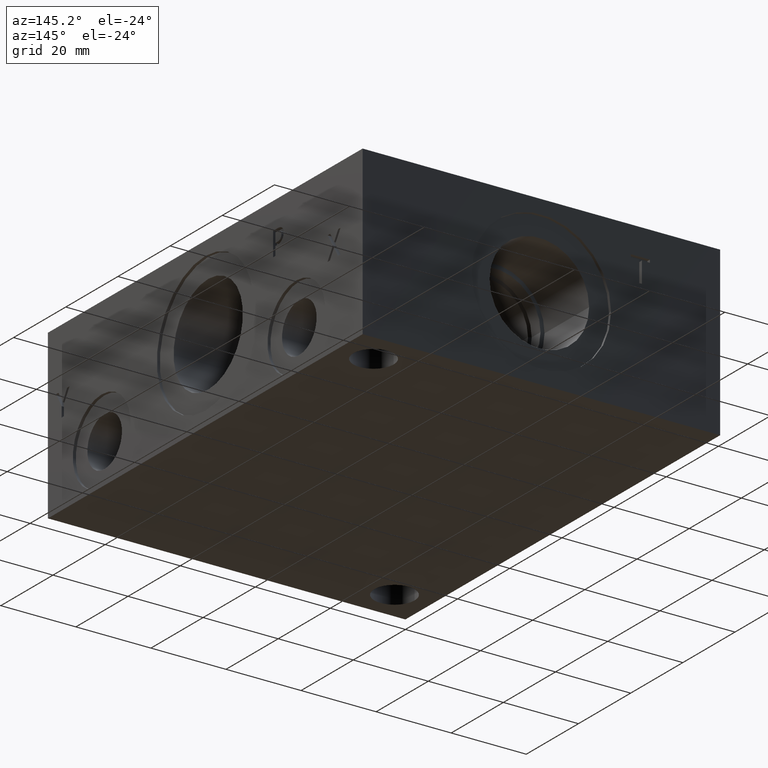
[diagram: clean part render]
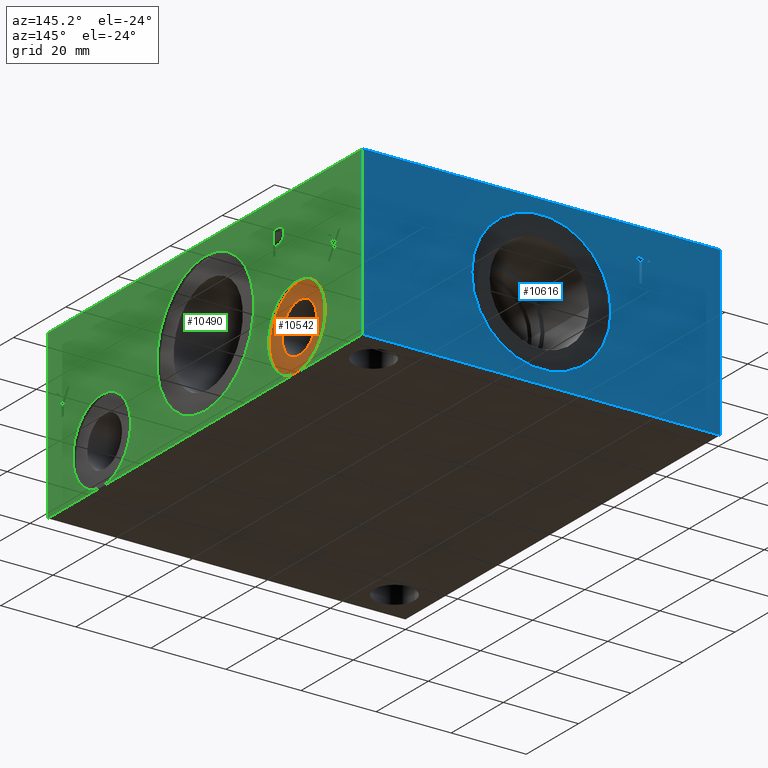
[diagram: same view with three faces highlighted in distinct colors, each labeled with its STEP entity id]
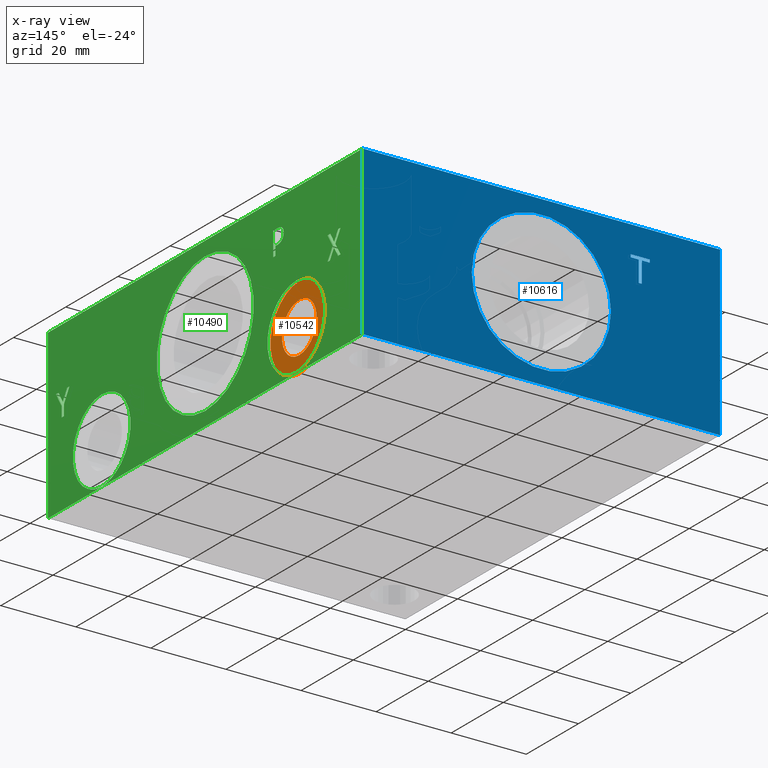
[diagram: x-ray of the same camera — body ghosted, the three highlighted faces saturated]
A machine part, auxiliary view with three faces highlighted in distinct colors.
The next image is the same camera in x-ray (body ghosted, the three faces saturated) — at least one of them is partly hidden behind the body in this view.
Their STEP definitions:

[orange] entity #10542 — the highlighted planar face has unit normal (-1, 0, 0).
#107=CIRCLE('',#10991,11.0617);
#108=CIRCLE('',#10992,11.0617);
#109=CIRCLE('',#10994,6.6294);
#110=CIRCLE('',#10995,6.6294);
#285=FACE_BOUND('',#1743,.T.);
#1161=FACE_OUTER_BOUND('',#1742,.T.);
#1742=EDGE_LOOP('',(#8887,#8888));
#1743=EDGE_LOOP('',(#8889,#8890));
#4785=VERTEX_POINT('',#17635);
#4786=VERTEX_POINT('',#17637);
#4787=VERTEX_POINT('',#17641);
#4788=VERTEX_POINT('',#17642);
#6199=EDGE_CURVE('',#4785,#4786,#107,.T.);
#6200=EDGE_CURVE('',#4786,#4785,#108,.T.);
#6201=EDGE_CURVE('',#4787,#4788,#109,.T.);
#6202=EDGE_CURVE('',#4788,#4787,#110,.T.);
#8887=ORIENTED_EDGE('',*,*,#6200,.F.);
#8888=ORIENTED_EDGE('',*,*,#6199,.F.);
#8889=ORIENTED_EDGE('',*,*,#6201,.T.);
#8890=ORIENTED_EDGE('',*,*,#6202,.T.);
#9627=PLANE('',#10993);
#10542=ADVANCED_FACE('',(#1161,#285),#9627,.F.);
#10991=AXIS2_PLACEMENT_3D('',#17638,#12899,#12900);
#10992=AXIS2_PLACEMENT_3D('',#17639,#12901,#12902);
#10993=AXIS2_PLACEMENT_3D('',#17640,#12903,#12904);
#10994=AXIS2_PLACEMENT_3D('',#17643,#12905,#12906);
#10995=AXIS2_PLACEMENT_3D('',#17644,#12907,#12908);
#12899=DIRECTION('center_axis',(-1.,0.,0.));
#12900=DIRECTION('ref_axis',(0.,0.,1.));
#12901=DIRECTION('center_axis',(-1.,0.,0.));
#12902=DIRECTION('ref_axis',(0.,0.,1.));
#12903=DIRECTION('center_axis',(-1.,0.,0.));
#12904=DIRECTION('ref_axis',(0.,0.,1.));
#12905=DIRECTION('center_axis',(-1.,0.,0.));
#12906=DIRECTION('ref_axis',(0.,0.,1.));
#12907=DIRECTION('center_axis',(-1.,0.,0.));
#12908=DIRECTION('ref_axis',(0.,0.,1.));
#17635=CARTESIAN_POINT('',(94.4626,95.25,22.1615));
#17637=CARTESIAN_POINT('',(94.4626,95.25,0.0380999999999987));
#17638=CARTESIAN_POINT('Origin',(94.4626,95.25,11.0998));
#17639=CARTESIAN_POINT('Origin',(94.4626,95.25,11.0998));
#17640=CARTESIAN_POINT('Origin',(94.4626,95.25,4.4704));
#17641=CARTESIAN_POINT('',(94.4626,95.25,4.4704));
#17642=CARTESIAN_POINT('',(94.4626,95.25,17.7292));
#17643=CARTESIAN_POINT('Origin',(94.4626,95.25,11.0998));
#17644=CARTESIAN_POINT('Origin',(94.4626,95.25,11.0998));

[blue] entity #10616 — the highlighted planar face has unit normal (0, 1, 0).
#120=CIRCLE('',#11012,18.5547);
#121=CIRCLE('',#11013,18.5547);
#301=FACE_BOUND('',#1833,.T.);
#302=FACE_BOUND('',#1834,.T.);
#1235=FACE_OUTER_BOUND('',#1832,.T.);
#1832=EDGE_LOOP('',(#9246,#9247,#9248,#9249));
#1833=EDGE_LOOP('',(#9250,#9251,#9252,#9253,#9254,#9255,#9256,#9257));
#1834=EDGE_LOOP('',(#9258,#9259));
#2048=LINE('',#14902,#3088);
#2695=LINE('',#16923,#3735);
#2699=LINE('',#16931,#3739);
#2702=LINE('',#16937,#3742);
#2705=LINE('',#16943,#3745);
#2708=LINE('',#16949,#3748);
#2711=LINE('',#16955,#3751);
#2714=LINE('',#16961,#3754);
#2717=LINE('',#16966,#3757);
#2752=LINE('',#17175,#3792);
#2891=LINE('',#18046,#3931);
#2892=LINE('',#18047,#3932);
#3088=VECTOR('',#11498,10.);
#3735=VECTOR('',#12597,10.);
#3739=VECTOR('',#12603,10.);
#3742=VECTOR('',#12608,10.);
#3745=VECTOR('',#12613,10.);
#3748=VECTOR('',#12618,10.);
#3751=VECTOR('',#12623,10.);
#3754=VECTOR('',#12628,10.);
#3757=VECTOR('',#12633,10.);
#3792=VECTOR('',#12690,10.);
#3931=VECTOR('',#13371,10.);
#3932=VECTOR('',#13372,10.);
#4149=VERTEX_POINT('',#14895);
#4152=VERTEX_POINT('',#14900);
#4643=VERTEX_POINT('',#16921);
#4644=VERTEX_POINT('',#16922);
#4647=VERTEX_POINT('',#16930);
#4649=VERTEX_POINT('',#16936);
#4651=VERTEX_POINT('',#16942);
#4653=VERTEX_POINT('',#16948);
#4655=VERTEX_POINT('',#16954);
#4657=VERTEX_POINT('',#16960);
#4692=VERTEX_POINT('',#17172);
#4693=VERTEX_POINT('',#17174);
#4798=VERTEX_POINT('',#17674);
#4799=VERTEX_POINT('',#17675);
#5258=EDGE_CURVE('',#4149,#4152,#2048,.T.);
#5989=EDGE_CURVE('',#4643,#4644,#2695,.T.);
#5993=EDGE_CURVE('',#4647,#4643,#2699,.T.);
#5996=EDGE_CURVE('',#4649,#4647,#2702,.T.);
#5999=EDGE_CURVE('',#4651,#4649,#2705,.T.);
#6002=EDGE_CURVE('',#4653,#4651,#2708,.T.);
#6005=EDGE_CURVE('',#4655,#4653,#2711,.T.);
#6008=EDGE_CURVE('',#4657,#4655,#2714,.T.);
#6011=EDGE_CURVE('',#4644,#4657,#2717,.T.);
#6062=EDGE_CURVE('',#4692,#4693,#2752,.T.);
#6216=EDGE_CURVE('',#4798,#4799,#120,.T.);
#6217=EDGE_CURVE('',#4799,#4798,#121,.T.);
#6388=EDGE_CURVE('',#4692,#4149,#2891,.T.);
#6389=EDGE_CURVE('',#4693,#4152,#2892,.T.);
#9246=ORIENTED_EDGE('',*,*,#6388,.T.);
#9247=ORIENTED_EDGE('',*,*,#5258,.T.);
#9248=ORIENTED_EDGE('',*,*,#6389,.F.);
#9249=ORIENTED_EDGE('',*,*,#6062,.F.);
#9250=ORIENTED_EDGE('',*,*,#5989,.T.);
#9251=ORIENTED_EDGE('',*,*,#6011,.T.);
#9252=ORIENTED_EDGE('',*,*,#6008,.T.);
#9253=ORIENTED_EDGE('',*,*,#6005,.T.);
#9254=ORIENTED_EDGE('',*,*,#6002,.T.);
#9255=ORIENTED_EDGE('',*,*,#5999,.T.);
#9256=ORIENTED_EDGE('',*,*,#5996,.T.);
#9257=ORIENTED_EDGE('',*,*,#5993,.T.);
#9258=ORIENTED_EDGE('',*,*,#6216,.T.);
#9259=ORIENTED_EDGE('',*,*,#6217,.T.);
#9645=PLANE('',#11198);
#10616=ADVANCED_FACE('',(#1235,#301,#302),#9645,.T.);
#11012=AXIS2_PLACEMENT_3D('',#17676,#12945,#12946);
#11013=AXIS2_PLACEMENT_3D('',#17677,#12947,#12948);
#11198=AXIS2_PLACEMENT_3D('',#18045,#13369,#13370);
#11498=DIRECTION('',(0.,0.,1.));
#12597=DIRECTION('',(1.,0.,5.26220561921649E-15));
#12603=DIRECTION('',(3.17280044688052E-15,0.,-1.));
#12608=DIRECTION('',(1.,0.,4.16909044227778E-15));
#12613=DIRECTION('',(0.,0.,-1.));
#12618=DIRECTION('',(-1.,0.,-2.60988423856301E-15));
#12623=DIRECTION('',(0.,0.,1.));
#12628=DIRECTION('',(1.,0.,4.16909044227778E-15));
#12633=DIRECTION('',(-3.17280044688052E-15,0.,1.));
#12690=DIRECTION('',(0.,0.,1.));
#12945=DIRECTION('center_axis',(0.,-1.,0.));
#12946=DIRECTION('ref_axis',(1.,0.,0.));
#12947=DIRECTION('center_axis',(0.,-1.,0.));
#12948=DIRECTION('ref_axis',(1.,0.,0.));
#13369=DIRECTION('center_axis',(0.,1.,0.));
#13370=DIRECTION('ref_axis',(-1.,0.,0.));
#13371=DIRECTION('',(-1.,0.,0.));
#13372=DIRECTION('',(-1.,0.,0.));
#14895=CARTESIAN_POINT('',(0.,120.65,0.));
#14900=CARTESIAN_POINT('',(0.,120.65,44.45));
#14902=CARTESIAN_POINT('',(0.,120.65,0.));
#16921=CARTESIAN_POINT('',(20.843334728547,120.65,30.95625));
#16922=CARTESIAN_POINT('',(21.6872569200865,120.65,30.95625));
#16923=CARTESIAN_POINT('',(58.0466673642734,120.65,30.9562500000002));
#16930=CARTESIAN_POINT('',(20.843334728547,120.65,36.5549533194815));
#16931=CARTESIAN_POINT('',(20.8433347285471,120.65,18.2774766597406));
#16936=CARTESIAN_POINT('',(18.7129457816119,120.65,36.5549533194815));
#16937=CARTESIAN_POINT('',(56.9814728908059,120.65,36.5549533194817));
#16942=CARTESIAN_POINT('',(18.7129457816119,120.65,37.3062499046325));
#16943=CARTESIAN_POINT('',(18.7129457816119,120.65,18.6531249523163));
#16948=CARTESIAN_POINT('',(23.8176458670216,120.65,37.3062499046326));
#16949=CARTESIAN_POINT('',(59.5338229335107,120.65,37.3062499046327));
#16954=CARTESIAN_POINT('',(23.8176458670216,120.65,36.5549533194815));
#16955=CARTESIAN_POINT('',(23.8176458670216,120.65,18.2774766597408));
#16960=CARTESIAN_POINT('',(21.6872569200865,120.65,36.5549533194815));
#16961=CARTESIAN_POINT('',(58.4686284600432,120.65,36.5549533194817));
#16966=CARTESIAN_POINT('',(21.6872569200866,120.65,15.4781249999999));
#17172=CARTESIAN_POINT('',(95.25,120.65,0.));
#17174=CARTESIAN_POINT('',(95.25,120.65,44.45));
#17175=CARTESIAN_POINT('',(95.25,120.65,0.));
#17674=CARTESIAN_POINT('',(66.1797,120.65,22.225));
#17675=CARTESIAN_POINT('',(29.0703,120.65,22.225));
#17676=CARTESIAN_POINT('Origin',(47.625,120.65,22.225));
#17677=CARTESIAN_POINT('Origin',(47.625,120.65,22.225));
#18045=CARTESIAN_POINT('Origin',(95.25,120.65,0.));
#18046=CARTESIAN_POINT('',(95.25,120.65,0.));
#18047=CARTESIAN_POINT('',(95.25,120.65,44.45));

[green] entity #10490 — the highlighted planar face has unit normal (1, 0, 0).
#81=CIRCLE('',#10928,18.5547);
#82=CIRCLE('',#10929,18.5547);
#83=CIRCLE('',#10930,11.0617);
#84=CIRCLE('',#10931,11.0617);
#85=CIRCLE('',#10932,11.0617);
#86=CIRCLE('',#10933,11.0617);
#272=FACE_BOUND('',#1678,.T.);
#273=FACE_BOUND('',#1679,.T.);
#274=FACE_BOUND('',#1680,.T.);
#275=FACE_BOUND('',#1681,.T.);
#276=FACE_BOUND('',#1682,.T.);
#277=FACE_BOUND('',#1683,.T.);
#539=B_SPLINE_CURVE_WITH_KNOTS('',2,(#17073,#17074,#17075,#17076),
 .UNSPECIFIED.,.F.,.F.,(3,1,3),(0.,1.,2.),.UNSPECIFIED.);
#541=B_SPLINE_CURVE_WITH_KNOTS('',2,(#17094,#17095,#17096,#17097),
 .UNSPECIFIED.,.F.,.F.,(3,1,3),(0.,1.,2.),.UNSPECIFIED.);
#543=B_SPLINE_CURVE_WITH_KNOTS('',2,(#17143,#17144,#17145,#17146),
 .UNSPECIFIED.,.F.,.F.,(3,1,3),(0.,1.,2.),.UNSPECIFIED.);
#545=B_SPLINE_CURVE_WITH_KNOTS('',2,(#17161,#17162,#17163,#17164),
 .UNSPECIFIED.,.F.,.F.,(3,1,3),(0.,1.,2.),.UNSPECIFIED.);
#1109=FACE_OUTER_BOUND('',#1677,.T.);
#1677=EDGE_LOOP('',(#8588,#8589,#8590,#8591));
#1678=EDGE_LOOP('',(#8592,#8593,#8594,#8595,#8596,#8597,#8598,#8599,#8600));
#1679=EDGE_LOOP('',(#8601,#8602,#8603,#8604,#8605,#8606,#8607,#8608,#8609,
#8610,#8611,#8612));
#1680=EDGE_LOOP('',(#8613,#8614));
#1681=EDGE_LOOP('',(#8615,#8616));
#1682=EDGE_LOOP('',(#8617,#8618));
#1683=EDGE_LOOP('',(#8619,#8620,#8621,#8622,#8623,#8624,#8625,#8626,#8627));
#2632=LINE('',#16795,#3672);
#2636=LINE('',#16803,#3676);
#2639=LINE('',#16809,#3679);
#2642=LINE('',#16815,#3682);
#2645=LINE('',#16821,#3685);
#2648=LINE('',#16827,#3688);
#2651=LINE('',#16833,#3691);
#2654=LINE('',#16839,#3694);
#2657=LINE('',#16844,#3697);
#2659=LINE('',#16850,#3699);
#2663=LINE('',#16858,#3703);
#2666=LINE('',#16864,#3706);
#2669=LINE('',#16870,#3709);
#2672=LINE('',#16876,#3712);
#2675=LINE('',#16882,#3715);
#2678=LINE('',#16888,#3718);
#2681=LINE('',#16894,#3721);
#2684=LINE('',#16900,#3724);
#2687=LINE('',#16906,#3727);
#2690=LINE('',#16912,#3730);
#2693=LINE('',#16917,#3733);
#2735=LINE('',#17106,#3775);
#2738=LINE('',#17112,#3778);
#2741=LINE('',#17118,#3781);
#2744=LINE('',#17124,#3784);
#2747=LINE('',#17130,#3787);
#2751=LINE('',#17173,#3791);
#2752=LINE('',#17175,#3792);
#2753=LINE('',#17177,#3793);
#2754=LINE('',#17178,#3794);
#3672=VECTOR('',#12488,10.);
#3676=VECTOR('',#12494,10.);
#3679=VECTOR('',#12499,10.);
#3682=VECTOR('',#12504,10.);
#3685=VECTOR('',#12509,10.);
#3688=VECTOR('',#12514,10.);
#3691=VECTOR('',#12519,10.);
#3694=VECTOR('',#12524,10.);
#3697=VECTOR('',#12529,10.);
#3699=VECTOR('',#12535,10.);
#3703=VECTOR('',#12541,10.);
#3706=VECTOR('',#12546,10.);
#3709=VECTOR('',#12551,10.);
#3712=VECTOR('',#12556,10.);
#3715=VECTOR('',#12561,10.);
#3718=VECTOR('',#12566,10.);
#3721=VECTOR('',#12571,10.);
#3724=VECTOR('',#12576,10.);
#3727=VECTOR('',#12581,10.);
#3730=VECTOR('',#12586,10.);
#3733=VECTOR('',#12591,10.);
#3775=VECTOR('',#12661,10.);
#3778=VECTOR('',#12666,10.);
#3781=VECTOR('',#12671,10.);
#3784=VECTOR('',#12676,10.);
#3787=VECTOR('',#12681,10.);
#3791=VECTOR('',#12689,10.);
#3792=VECTOR('',#12690,10.);
#3793=VECTOR('',#12691,10.);
#3794=VECTOR('',#12692,10.);
#4601=VERTEX_POINT('',#16793);
#4602=VERTEX_POINT('',#16794);
#4605=VERTEX_POINT('',#16802);
#4607=VERTEX_POINT('',#16808);
#4609=VERTEX_POINT('',#16814);
#4611=VERTEX_POINT('',#16820);
#4613=VERTEX_POINT('',#16826);
#4615=VERTEX_POINT('',#16832);
#4617=VERTEX_POINT('',#16838);
#4619=VERTEX_POINT('',#16848);
#4620=VERTEX_POINT('',#16849);
#4623=VERTEX_POINT('',#16857);
#4625=VERTEX_POINT('',#16863);
#4627=VERTEX_POINT('',#16869);
#4629=VERTEX_POINT('',#16875);
#4631=VERTEX_POINT('',#16881);
#4633=VERTEX_POINT('',#16887);
#4635=VERTEX_POINT('',#16893);
#4637=VERTEX_POINT('',#16899);
#4639=VERTEX_POINT('',#16905);
#4641=VERTEX_POINT('',#16911);
#4673=VERTEX_POINT('',#17071);
#4674=VERTEX_POINT('',#17072);
#4677=VERTEX_POINT('',#17093);
#4679=VERTEX_POINT('',#17105);
#4681=VERTEX_POINT('',#17111);
#4683=VERTEX_POINT('',#17117);
#4685=VERTEX_POINT('',#17123);
#4687=VERTEX_POINT('',#17129);
#4689=VERTEX_POINT('',#17142);
#4691=VERTEX_POINT('',#17171);
#4692=VERTEX_POINT('',#17172);
#4693=VERTEX_POINT('',#17174);
#4694=VERTEX_POINT('',#17176);
#4695=VERTEX_POINT('',#17179);
#4696=VERTEX_POINT('',#17180);
#4697=VERTEX_POINT('',#17183);
#4698=VERTEX_POINT('',#17184);
#4699=VERTEX_POINT('',#17187);
#4700=VERTEX_POINT('',#17188);
#5926=EDGE_CURVE('',#4601,#4602,#2632,.T.);
#5930=EDGE_CURVE('',#4605,#4601,#2636,.T.);
#5933=EDGE_CURVE('',#4607,#4605,#2639,.T.);
#5936=EDGE_CURVE('',#4609,#4607,#2642,.T.);
#5939=EDGE_CURVE('',#4611,#4609,#2645,.T.);
#5942=EDGE_CURVE('',#4613,#4611,#2648,.T.);
#5945=EDGE_CURVE('',#4615,#4613,#2651,.T.);
#5948=EDGE_CURVE('',#4617,#4615,#2654,.T.);
#5951=EDGE_CURVE('',#4602,#4617,#2657,.T.);
#5953=EDGE_CURVE('',#4619,#4620,#2659,.T.);
#5957=EDGE_CURVE('',#4623,#4619,#2663,.T.);
#5960=EDGE_CURVE('',#4625,#4623,#2666,.T.);
#5963=EDGE_CURVE('',#4627,#4625,#2669,.T.);
#5966=EDGE_CURVE('',#4629,#4627,#2672,.T.);
#5969=EDGE_CURVE('',#4631,#4629,#2675,.T.);
#5972=EDGE_CURVE('',#4633,#4631,#2678,.T.);
#5975=EDGE_CURVE('',#4635,#4633,#2681,.T.);
#5978=EDGE_CURVE('',#4637,#4635,#2684,.T.);
#5981=EDGE_CURVE('',#4639,#4637,#2687,.T.);
#5984=EDGE_CURVE('',#4641,#4639,#2690,.T.);
#5987=EDGE_CURVE('',#4620,#4641,#2693,.T.);
#6034=EDGE_CURVE('',#4673,#4674,#539,.T.);
#6038=EDGE_CURVE('',#4677,#4673,#541,.T.);
#6041=EDGE_CURVE('',#4679,#4677,#2735,.T.);
#6044=EDGE_CURVE('',#4681,#4679,#2738,.T.);
#6047=EDGE_CURVE('',#4683,#4681,#2741,.T.);
#6050=EDGE_CURVE('',#4685,#4683,#2744,.T.);
#6053=EDGE_CURVE('',#4687,#4685,#2747,.T.);
#6056=EDGE_CURVE('',#4689,#4687,#543,.T.);
#6059=EDGE_CURVE('',#4674,#4689,#545,.T.);
#6061=EDGE_CURVE('',#4691,#4692,#2751,.T.);
#6062=EDGE_CURVE('',#4692,#4693,#2752,.T.);
#6063=EDGE_CURVE('',#4694,#4693,#2753,.T.);
#6064=EDGE_CURVE('',#4691,#4694,#2754,.T.);
#6065=EDGE_CURVE('',#4695,#4696,#81,.T.);
#6066=EDGE_CURVE('',#4696,#4695,#82,.T.);
#6067=EDGE_CURVE('',#4697,#4698,#83,.T.);
#6068=EDGE_CURVE('',#4698,#4697,#84,.T.);
#6069=EDGE_CURVE('',#4699,#4700,#85,.T.);
#6070=EDGE_CURVE('',#4700,#4699,#86,.T.);
#8588=ORIENTED_EDGE('',*,*,#6061,.T.);
#8589=ORIENTED_EDGE('',*,*,#6062,.T.);
#8590=ORIENTED_EDGE('',*,*,#6063,.F.);
#8591=ORIENTED_EDGE('',*,*,#6064,.F.);
#8592=ORIENTED_EDGE('',*,*,#5926,.T.);
#8593=ORIENTED_EDGE('',*,*,#5951,.T.);
#8594=ORIENTED_EDGE('',*,*,#5948,.T.);
#8595=ORIENTED_EDGE('',*,*,#5945,.T.);
#8596=ORIENTED_EDGE('',*,*,#5942,.T.);
#8597=ORIENTED_EDGE('',*,*,#5939,.T.);
#8598=ORIENTED_EDGE('',*,*,#5936,.T.);
#8599=ORIENTED_EDGE('',*,*,#5933,.T.);
#8600=ORIENTED_EDGE('',*,*,#5930,.T.);
#8601=ORIENTED_EDGE('',*,*,#5953,.T.);
#8602=ORIENTED_EDGE('',*,*,#5987,.T.);
#8603=ORIENTED_EDGE('',*,*,#5984,.T.);
#8604=ORIENTED_EDGE('',*,*,#5981,.T.);
#8605=ORIENTED_EDGE('',*,*,#5978,.T.);
#8606=ORIENTED_EDGE('',*,*,#5975,.T.);
#8607=ORIENTED_EDGE('',*,*,#5972,.T.);
#8608=ORIENTED_EDGE('',*,*,#5969,.T.);
#8609=ORIENTED_EDGE('',*,*,#5966,.T.);
#8610=ORIENTED_EDGE('',*,*,#5963,.T.);
#8611=ORIENTED_EDGE('',*,*,#5960,.T.);
#8612=ORIENTED_EDGE('',*,*,#5957,.T.);
#8613=ORIENTED_EDGE('',*,*,#6065,.T.);
#8614=ORIENTED_EDGE('',*,*,#6066,.T.);
#8615=ORIENTED_EDGE('',*,*,#6067,.T.);
#8616=ORIENTED_EDGE('',*,*,#6068,.T.);
#8617=ORIENTED_EDGE('',*,*,#6069,.T.);
#8618=ORIENTED_EDGE('',*,*,#6070,.T.);
#8619=ORIENTED_EDGE('',*,*,#6034,.T.);
#8620=ORIENTED_EDGE('',*,*,#6059,.T.);
#8621=ORIENTED_EDGE('',*,*,#6056,.T.);
#8622=ORIENTED_EDGE('',*,*,#6053,.T.);
#8623=ORIENTED_EDGE('',*,*,#6050,.T.);
#8624=ORIENTED_EDGE('',*,*,#6047,.T.);
#8625=ORIENTED_EDGE('',*,*,#6044,.T.);
#8626=ORIENTED_EDGE('',*,*,#6041,.T.);
#8627=ORIENTED_EDGE('',*,*,#6038,.T.);
#9598=PLANE('',#10927);
#10490=ADVANCED_FACE('',(#1109,#272,#273,#274,#275,#276,#277),#9598,.T.);
#10927=AXIS2_PLACEMENT_3D('',#17170,#12687,#12688);
#10928=AXIS2_PLACEMENT_3D('',#17181,#12693,#12694);
#10929=AXIS2_PLACEMENT_3D('',#17182,#12695,#12696);
#10930=AXIS2_PLACEMENT_3D('',#17185,#12697,#12698);
#10931=AXIS2_PLACEMENT_3D('',#17186,#12699,#12700);
#10932=AXIS2_PLACEMENT_3D('',#17189,#12701,#12702);
#10933=AXIS2_PLACEMENT_3D('',#17190,#12703,#12704);
#12488=DIRECTION('',(0.,1.,0.));
#12494=DIRECTION('',(0.,0.512401080946013,0.858746256029892));
#12499=DIRECTION('',(0.,0.505352400516576,-0.862913061259438));
#12504=DIRECTION('',(0.,1.,0.));
#12509=DIRECTION('',(0.,-0.509099449897539,0.860707703064184));
#12514=DIRECTION('',(0.,0.,1.));
#12519=DIRECTION('',(0.,-1.,0.));
#12524=DIRECTION('',(0.,0.,-1.));
#12529=DIRECTION('',(0.,-0.518329263750967,-0.855181135397279));
#12535=DIRECTION('',(0.,0.524855865490427,-0.851191118645099));
#12541=DIRECTION('',(0.,-0.53597672021737,-0.844232761378657));
#12546=DIRECTION('',(0.,1.,0.));
#12551=DIRECTION('',(0.,0.527625517089332,0.849477082513834));
#12556=DIRECTION('',(0.,0.519946946895747,-0.854198555614438));
#12561=DIRECTION('',(0.,1.,0.));
#12566=DIRECTION('',(0.,-0.526021863962622,0.850471045146917));
#12571=DIRECTION('',(0.,0.536610413405565,0.843830115736994));
#12576=DIRECTION('',(0.,-1.,0.));
#12581=DIRECTION('',(0.,-0.528135980540067,-0.849159811848736));
#12586=DIRECTION('',(0.,-0.520607424264657,0.853796175794036));
#12591=DIRECTION('',(0.,-1.,0.));
#12661=DIRECTION('',(0.,1.,0.));
#12666=DIRECTION('',(0.,0.,1.));
#12671=DIRECTION('',(0.,-1.,0.));
#12676=DIRECTION('',(0.,0.,-1.));
#12681=DIRECTION('',(0.,-1.,0.));
#12687=DIRECTION('center_axis',(1.,0.,0.));
#12688=DIRECTION('ref_axis',(0.,1.,0.));
#12689=DIRECTION('',(0.,1.,0.));
#12690=DIRECTION('',(0.,0.,1.));
#12691=DIRECTION('',(0.,1.,0.));
#12692=DIRECTION('',(0.,0.,1.));
#12693=DIRECTION('center_axis',(-1.,0.,0.));
#12694=DIRECTION('ref_axis',(0.,0.,-1.));
#12695=DIRECTION('center_axis',(-1.,0.,0.));
#12696=DIRECTION('ref_axis',(0.,0.,-1.));
#12697=DIRECTION('center_axis',(-1.,0.,0.));
#12698=DIRECTION('ref_axis',(0.,0.,-1.));
#12699=DIRECTION('center_axis',(-1.,0.,0.));
#12700=DIRECTION('ref_axis',(0.,0.,-1.));
#12701=DIRECTION('center_axis',(-1.,0.,0.));
#12702=DIRECTION('ref_axis',(0.,0.,-1.));
#12703=DIRECTION('center_axis',(-1.,0.,0.));
#12704=DIRECTION('ref_axis',(0.,0.,-1.));
#16793=CARTESIAN_POINT('',(95.25,7.36888162258958,28.5749999046326));
#16794=CARTESIAN_POINT('',(95.25,8.2642624843449,28.5749999046326));
#16795=CARTESIAN_POINT('',(95.25,3.68444081129479,28.5749999046326));
#16802=CARTESIAN_POINT('',(95.25,5.70162070759691,25.7807941119134));
#16803=CARTESIAN_POINT('',(95.25,-0.718938293338294,15.020412823309));
#16808=CARTESIAN_POINT('',(95.25,4.06523499473374,28.5749999046326));
#16809=CARTESIAN_POINT('',(95.25,9.77656721931101,18.8226307287035));
#16814=CARTESIAN_POINT('',(95.25,3.12868719680576,28.5749999046326));
#16815=CARTESIAN_POINT('',(95.25,1.56434359840288,28.5749999046326));
#16820=CARTESIAN_POINT('',(95.25,5.27451374480558,24.947163654417));
#16821=CARTESIAN_POINT('',(95.25,10.0567302333371,16.8621213896335));
#16826=CARTESIAN_POINT('',(95.25,5.27451374480558,22.225));
#16827=CARTESIAN_POINT('',(95.25,5.27451374480558,11.1125));
#16832=CARTESIAN_POINT('',(95.25,6.11843593634508,22.225));
#16833=CARTESIAN_POINT('',(95.25,3.05921796817254,22.225));
#16838=CARTESIAN_POINT('',(95.25,6.11843593634508,25.0346433937839));
#16839=CARTESIAN_POINT('',(95.25,6.11843593634508,12.517321696892));
#16844=CARTESIAN_POINT('',(95.25,0.820948011983548,16.294423508986));
#16848=CARTESIAN_POINT('',(95.25,110.202603276777,25.4463127555105));
#16849=CARTESIAN_POINT('',(95.25,112.188907947108,22.225));
#16850=CARTESIAN_POINT('',(95.25,100.707748811362,40.8447036761061));
#16857=CARTESIAN_POINT('',(95.25,112.188907947108,28.5749999046326));
#16858=CARTESIAN_POINT('',(95.25,89.6096574688505,-6.99024437200034));
#16863=CARTESIAN_POINT('',(95.25,111.278089484287,28.5749999046326));
#16864=CARTESIAN_POINT('',(95.25,55.6390447421437,28.5749999046326));
#16869=CARTESIAN_POINT('',(95.25,109.734329377813,26.0895461332083));
#16870=CARTESIAN_POINT('',(95.25,88.6131887285719,-7.91549031206986));
#16875=CARTESIAN_POINT('',(95.25,108.221444473468,28.5749999046326));
#16876=CARTESIAN_POINT('',(95.25,99.9385112682896,42.1826758845678));
#16881=CARTESIAN_POINT('',(95.25,107.25402147341,28.5749999046326));
#16882=CARTESIAN_POINT('',(95.25,53.627010736705,28.5749999046326));
#16887=CARTESIAN_POINT('',(95.25,109.214596808633,25.4051458193379));
#16888=CARTESIAN_POINT('',(95.25,99.7875157341323,40.6468307061946));
#16893=CARTESIAN_POINT('',(95.25,107.192271069151,22.225));
#16894=CARTESIAN_POINT('',(95.25,86.7273952044455,-9.95640784831546));
#16899=CARTESIAN_POINT('',(95.25,108.103089531971,22.225));
#16900=CARTESIAN_POINT('',(95.25,54.0515447659856,22.225));
#16905=CARTESIAN_POINT('',(95.25,109.677724840575,24.7567665746185));
#16906=CARTESIAN_POINT('',(95.25,88.8302953432353,-8.76262987208503));
#16911=CARTESIAN_POINT('',(95.25,111.22148494705,22.225));
#16912=CARTESIAN_POINT('',(95.25,101.088613504746,38.8429091653787));
#16917=CARTESIAN_POINT('',(95.25,56.0944539735538,22.225));
#17071=CARTESIAN_POINT('',(95.25,89.6255672023594,36.9100181439707));
#17072=CARTESIAN_POINT('',(95.25,90.382009654532,35.3919873726039));
#17073=CARTESIAN_POINT('Ctrl Pts',(95.25,89.6255672023594,36.9100181439707));
#17074=CARTESIAN_POINT('Ctrl Pts',(95.25,89.9806320268486,36.6681623939564));
#17075=CARTESIAN_POINT('Ctrl Pts',(95.25,90.382009654532,35.9220116758269));
#17076=CARTESIAN_POINT('Ctrl Pts',(95.25,90.382009654532,35.3919873726039));
#17093=CARTESIAN_POINT('',(95.25,87.9634521543883,37.3062499046326));
#17094=CARTESIAN_POINT('Ctrl Pts',(95.25,87.9634521543883,37.3062499046326));
#17095=CARTESIAN_POINT('Ctrl Pts',(95.25,88.5294975267624,37.3062499046326));
#17096=CARTESIAN_POINT('Ctrl Pts',(95.25,89.321961048086,37.1209986918556));
#17097=CARTESIAN_POINT('Ctrl Pts',(95.25,89.6255672023594,36.9100181439707));
#17105=CARTESIAN_POINT('',(95.25,86.3682333776978,37.3062499046326));
#17106=CARTESIAN_POINT('',(95.25,43.1841166888489,37.3062499046326));
#17111=CARTESIAN_POINT('',(95.25,86.3682333776978,30.95625));
#17112=CARTESIAN_POINT('',(95.25,86.3682333776978,15.478125));
#17117=CARTESIAN_POINT('',(95.25,87.2121555692373,30.95625));
#17118=CARTESIAN_POINT('',(95.25,43.6060777846186,30.95625));
#17123=CARTESIAN_POINT('',(95.25,87.2121555692373,33.3233488299279));
#17124=CARTESIAN_POINT('',(95.25,87.2121555692373,16.6616744149639));
#17129=CARTESIAN_POINT('',(95.25,87.9274310852372,33.3233488299279));
#17130=CARTESIAN_POINT('',(95.25,43.9637155426186,33.3233488299279));
#17142=CARTESIAN_POINT('',(95.25,89.8262560162011,33.9820198086904));
#17143=CARTESIAN_POINT('Ctrl Pts',(95.25,89.8262560162011,33.9820198086904));
#17144=CARTESIAN_POINT('Ctrl Pts',(95.25,89.4969205268198,33.6578301863307));
#17145=CARTESIAN_POINT('Ctrl Pts',(95.25,88.6066855320861,33.3233488299279));
#17146=CARTESIAN_POINT('Ctrl Pts',(95.25,87.9274310852372,33.3233488299279));
#17161=CARTESIAN_POINT('Ctrl Pts',(95.25,90.382009654532,35.3919873726039));
#17162=CARTESIAN_POINT('Ctrl Pts',(95.25,90.382009654532,34.9803180108774));
#17163=CARTESIAN_POINT('Ctrl Pts',(95.25,90.0886952343018,34.2393131597695));
#17164=CARTESIAN_POINT('Ctrl Pts',(95.25,89.8262560162011,33.9820198086904));
#17170=CARTESIAN_POINT('Origin',(95.25,0.,0.));
#17171=CARTESIAN_POINT('',(95.25,0.,0.));
#17172=CARTESIAN_POINT('',(95.25,120.65,0.));
#17173=CARTESIAN_POINT('',(95.25,0.,0.));
#17174=CARTESIAN_POINT('',(95.25,120.65,44.45));
#17175=CARTESIAN_POINT('',(95.25,120.65,0.));
#17176=CARTESIAN_POINT('',(95.25,0.,44.45));
#17177=CARTESIAN_POINT('',(95.25,0.,44.45));
#17178=CARTESIAN_POINT('',(95.25,0.,0.));
#17179=CARTESIAN_POINT('',(95.25,60.325,3.6703));
#17180=CARTESIAN_POINT('',(95.25,60.325,40.7797));
#17181=CARTESIAN_POINT('Origin',(95.25,60.325,22.225));
#17182=CARTESIAN_POINT('Origin',(95.25,60.325,22.225));
#17183=CARTESIAN_POINT('',(95.25,95.25,0.0380999999999987));
#17184=CARTESIAN_POINT('',(95.25,95.25,22.1615));
#17185=CARTESIAN_POINT('Origin',(95.25,95.25,11.0998));
#17186=CARTESIAN_POINT('Origin',(95.25,95.25,11.0998));
#17187=CARTESIAN_POINT('',(95.25,20.6248,0.0380999999999987));
#17188=CARTESIAN_POINT('',(95.25,20.6248,22.1615));
#17189=CARTESIAN_POINT('Origin',(95.25,20.6248,11.0998));
#17190=CARTESIAN_POINT('Origin',(95.25,20.6248,11.0998));